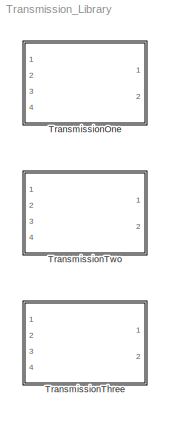
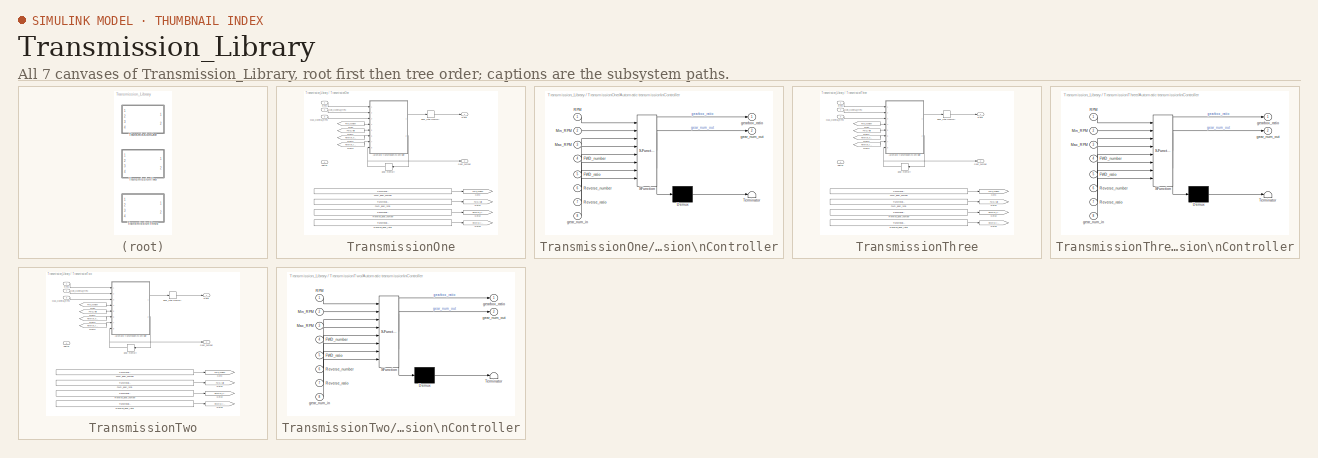
[diagram: thumbnail index - all 7 canvases of the model, root first then tree order]
MODEL Transmission_Library
KIND model
CONFIG PostLoadFcn = %%% BEGIN TransmissionOne CODE %%%\n% Import the data from Excel for a lookup table\ndata = xlsread('Transmission_Specification.xlsx', 'TransmissionOne');\nfor idx=1:length(data(:,1))\nif isnan(data(idx,1))\n  break\nend\nTransmission_TransmissionOne_FWD_gear_number_raw(idx) = data(idx,1);\nend\nfor idx=1:length(data(:,2))\nif isnan(data(idx,2))\n  break\nend\nTransmission_TransmissionOne_FWD_gear...<+3434ch>
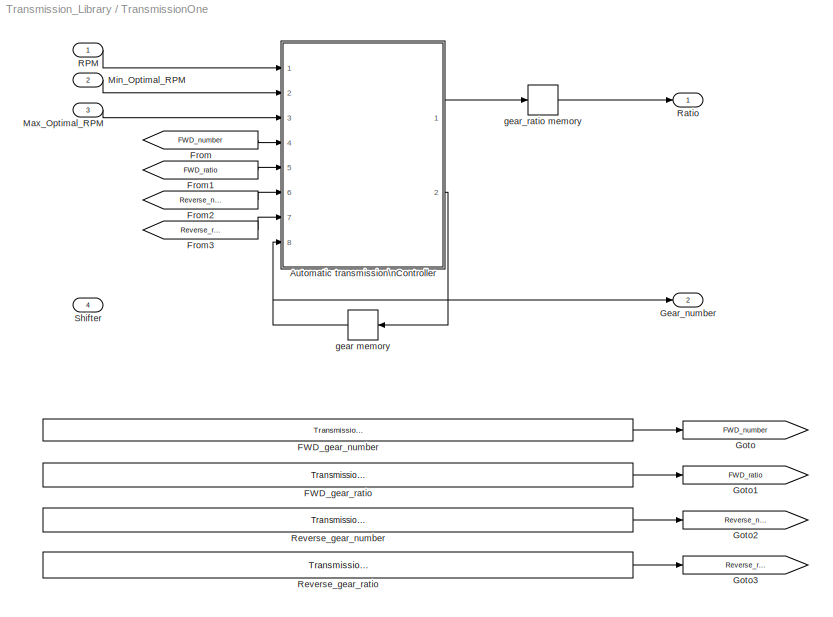
BLOCK [SubSystem] TransmissionOne
  FunctionWithSeparateData = off
  MaskHideContents = off
  MinAlgLoopOccurrences = off
  Opaque = off
  Ports = [4, 2]
  PropExecContextOutsideSubsystem = off
  RTWSystemCode = Auto
  RequestExecContextInheritance = off
  SID = 1
BLOCK [SubSystem] TransmissionOne/Automatic transmission\nController
  FunctionWithSeparateData = off
  MaskDescription = Embedded MATLAB block
  MaskDisplay = disp('fcn');
  MaskHideContents = off
  MaskIconFrame = on
  MaskIconOpaque = off
  MaskIconRotate = none
  MaskIconUnits = autoscale
  MaskPortRotate = default
  MaskSelfModifiable = on
  MaskType = Stateflow
  MinAlgLoopOccurrences = off
  Opaque = off
  PermitHierarchicalResolution = ExplicitOnly
  Ports = [8, 2]
  PropExecContextOutsideSubsystem = off
  RTWSystemCode = Auto
  RequestExecContextInheritance = off
  SID = 6
  TreatAsAtomicUnit = on
BLOCK [Demux] TransmissionOne/Automatic transmission\nController/ Demux 
  Outputs = 1
  Ports = [1, 1]
  SID = 6::15
BLOCK [S-Function] TransmissionOne/Automatic transmission\nController/ SFunction 
  EnableBusSupport = on
  FunctionName = sf_sfun
  PortCounts = [8 3]
  Ports = [8, 3]
  SID = 6::14
  Tag = Stateflow S-Function Transmission_Library 4
BLOCK [Terminator] TransmissionOne/Automatic transmission\nController/ Terminator 
  SID = 6::17
BLOCK [Inport] TransmissionOne/Automatic transmission\nController/FWD_number
  IconDisplay = Port number
  Port = 4
  SID = 6::24
BLOCK [Inport] TransmissionOne/Automatic transmission\nController/FWD_ratio
  IconDisplay = Port number
  Port = 5
  SID = 6::25
BLOCK [Inport] TransmissionOne/Automatic transmission\nController/Max_RPM
  IconDisplay = Port number
  Port = 3
  SID = 6::22
BLOCK [Inport] TransmissionOne/Automatic transmission\nController/Min_RPM
  IconDisplay = Port number
  Port = 2
  SID = 6::21
BLOCK [Inport] TransmissionOne/Automatic transmission\nController/RPM
  IconDisplay = Port number
  SID = 6::1
BLOCK [Inport] TransmissionOne/Automatic transmission\nController/Reverse_number
  IconDisplay = Port number
  Port = 6
  SID = 6::26
BLOCK [Inport] TransmissionOne/Automatic transmission\nController/Reverse_ratio
  IconDisplay = Port number
  Port = 7
  SID = 6::27
BLOCK [Inport] TransmissionOne/Automatic transmission\nController/gear_num_in
  IconDisplay = Port number
  Port = 8
  SID = 6::19
BLOCK [Outport] TransmissionOne/Automatic transmission\nController/gear_num_out
  IconDisplay = Port number
  Port = 2
  SID = 6::5
BLOCK [Outport] TransmissionOne/Automatic transmission\nController/gearbox_ratio
  IconDisplay = Port number
  SID = 6::20
BLOCK [Constant] TransmissionOne/FWD_gear_number
  SID = 7
  Value = Transmission_TransmissionOne_FWD_gear_number_raw
BLOCK [Constant] TransmissionOne/FWD_gear_ratio
  SID = 8
  Value = Transmission_TransmissionOne_FWD_gear_ratio_raw
BLOCK [From] TransmissionOne/From
  GotoTag = FWD_number
  SID = 9
BLOCK [From] TransmissionOne/From1
  GotoTag = FWD_ratio
  SID = 10
BLOCK [From] TransmissionOne/From2
  GotoTag = Reverse_number
  SID = 11
BLOCK [From] TransmissionOne/From3
  GotoTag = Reverse_ratio
  SID = 12
BLOCK [Outport] TransmissionOne/Gear_number
  IconDisplay = Port number
  Port = 2
  SID = 22
BLOCK [Goto] TransmissionOne/Goto
  GotoTag = FWD_number
  SID = 13
  TagVisibility = local
BLOCK [Goto] TransmissionOne/Goto1
  GotoTag = FWD_ratio
  SID = 14
  TagVisibility = local
BLOCK [Goto] TransmissionOne/Goto2
  GotoTag = Reverse_number
  SID = 15
  TagVisibility = local
BLOCK [Goto] TransmissionOne/Goto3
  GotoTag = Reverse_ratio
  SID = 16
  TagVisibility = local
BLOCK [Inport] TransmissionOne/Max_Optimal_RPM
  IconDisplay = Port number
  Port = 3
  SID = 4
BLOCK [Inport] TransmissionOne/Min_Optimal_RPM
  IconDisplay = Port number
  Port = 2
  SID = 3
BLOCK [Inport] TransmissionOne/RPM
  IconDisplay = Port number
  SID = 2
BLOCK [Outport] TransmissionOne/Ratio
  IconDisplay = Port number
  SID = 21
BLOCK [Constant] TransmissionOne/Reverse_gear_number
  SID = 17
  Value = Transmission_TransmissionOne_Reverse_gear_number_raw
BLOCK [Constant] TransmissionOne/Reverse_gear_ratio
  SID = 18
  Value = Transmission_TransmissionOne_Reverse_gear_ratio_raw
BLOCK [Inport] TransmissionOne/Shifter
  IconDisplay = Port number
  Port = 4
  SID = 5
BLOCK [Memory] TransmissionOne/gear memory
  SID = 19
  X0 = 1
BLOCK [Memory] TransmissionOne/gear_ratio memory
  SID = 20
  X0 = 1
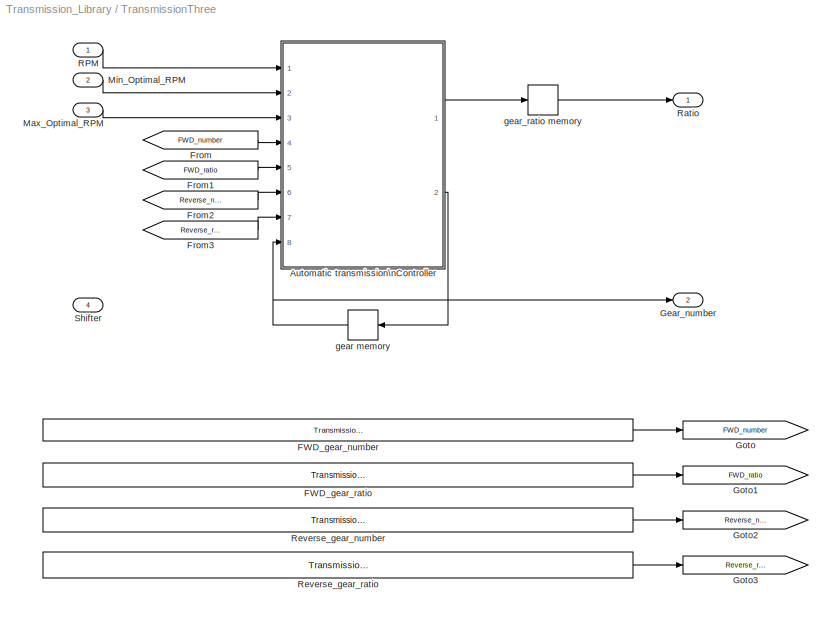
BLOCK [SubSystem] TransmissionThree
  FunctionWithSeparateData = off
  MaskHideContents = off
  MinAlgLoopOccurrences = off
  Opaque = off
  Ports = [4, 2]
  PropExecContextOutsideSubsystem = off
  RTWSystemCode = Auto
  RequestExecContextInheritance = off
  SID = 45
BLOCK [SubSystem] TransmissionThree/Automatic transmission\nController
  FunctionWithSeparateData = off
  MaskDescription = Embedded MATLAB block
  MaskDisplay = disp('fcn');
  MaskHideContents = off
  MaskIconFrame = on
  MaskIconOpaque = off
  MaskIconRotate = none
  MaskIconUnits = autoscale
  MaskPortRotate = default
  MaskSelfModifiable = on
  MaskType = Stateflow
  MinAlgLoopOccurrences = off
  Opaque = off
  PermitHierarchicalResolution = ExplicitOnly
  Ports = [8, 2]
  PropExecContextOutsideSubsystem = off
  RTWSystemCode = Auto
  RequestExecContextInheritance = off
  SID = 50
  TreatAsAtomicUnit = on
BLOCK [Demux] TransmissionThree/Automatic transmission\nController/ Demux 
  Outputs = 1
  Ports = [1, 1]
  SID = 50::15
BLOCK [S-Function] TransmissionThree/Automatic transmission\nController/ SFunction 
  EnableBusSupport = on
  FunctionName = sf_sfun
  PortCounts = [8 3]
  Ports = [8, 3]
  SID = 50::14
  Tag = Stateflow S-Function Transmission_Library 2
BLOCK [Terminator] TransmissionThree/Automatic transmission\nController/ Terminator 
  SID = 50::17
BLOCK [Inport] TransmissionThree/Automatic transmission\nController/FWD_number
  IconDisplay = Port number
  Port = 4
  SID = 50::24
BLOCK [Inport] TransmissionThree/Automatic transmission\nController/FWD_ratio
  IconDisplay = Port number
  Port = 5
  SID = 50::25
BLOCK [Inport] TransmissionThree/Automatic transmission\nController/Max_RPM
  IconDisplay = Port number
  Port = 3
  SID = 50::22
BLOCK [Inport] TransmissionThree/Automatic transmission\nController/Min_RPM
  IconDisplay = Port number
  Port = 2
  SID = 50::21
BLOCK [Inport] TransmissionThree/Automatic transmission\nController/RPM
  IconDisplay = Port number
  SID = 50::1
BLOCK [Inport] TransmissionThree/Automatic transmission\nController/Reverse_number
  IconDisplay = Port number
  Port = 6
  SID = 50::26
BLOCK [Inport] TransmissionThree/Automatic transmission\nController/Reverse_ratio
  IconDisplay = Port number
  Port = 7
  SID = 50::27
BLOCK [Inport] TransmissionThree/Automatic transmission\nController/gear_num_in
  IconDisplay = Port number
  Port = 8
  SID = 50::19
BLOCK [Outport] TransmissionThree/Automatic transmission\nController/gear_num_out
  IconDisplay = Port number
  Port = 2
  SID = 50::5
BLOCK [Outport] TransmissionThree/Automatic transmission\nController/gearbox_ratio
  IconDisplay = Port number
  SID = 50::20
BLOCK [Constant] TransmissionThree/FWD_gear_number
  SID = 51
  Value = Transmission_TransmissionThree_FWD_gear_number_raw
BLOCK [Constant] TransmissionThree/FWD_gear_ratio
  SID = 52
  Value = Transmission_TransmissionThree_FWD_gear_ratio_raw
BLOCK [From] TransmissionThree/From
  GotoTag = FWD_number
  SID = 53
BLOCK [From] TransmissionThree/From1
  GotoTag = FWD_ratio
  SID = 54
BLOCK [From] TransmissionThree/From2
  GotoTag = Reverse_number
  SID = 55
BLOCK [From] TransmissionThree/From3
  GotoTag = Reverse_ratio
  SID = 56
BLOCK [Outport] TransmissionThree/Gear_number
  IconDisplay = Port number
  Port = 2
  SID = 66
BLOCK [Goto] TransmissionThree/Goto
  GotoTag = FWD_number
  SID = 57
  TagVisibility = local
BLOCK [Goto] TransmissionThree/Goto1
  GotoTag = FWD_ratio
  SID = 58
  TagVisibility = local
BLOCK [Goto] TransmissionThree/Goto2
  GotoTag = Reverse_number
  SID = 59
  TagVisibility = local
BLOCK [Goto] TransmissionThree/Goto3
  GotoTag = Reverse_ratio
  SID = 60
  TagVisibility = local
BLOCK [Inport] TransmissionThree/Max_Optimal_RPM
  IconDisplay = Port number
  Port = 3
  SID = 48
BLOCK [Inport] TransmissionThree/Min_Optimal_RPM
  IconDisplay = Port number
  Port = 2
  SID = 47
BLOCK [Inport] TransmissionThree/RPM
  IconDisplay = Port number
  SID = 46
BLOCK [Outport] TransmissionThree/Ratio
  IconDisplay = Port number
  SID = 65
BLOCK [Constant] TransmissionThree/Reverse_gear_number
  SID = 61
  Value = Transmission_TransmissionThree_Reverse_gear_number_raw
BLOCK [Constant] TransmissionThree/Reverse_gear_ratio
  SID = 62
  Value = Transmission_TransmissionThree_Reverse_gear_ratio_raw
BLOCK [Inport] TransmissionThree/Shifter
  IconDisplay = Port number
  Port = 4
  SID = 49
BLOCK [Memory] TransmissionThree/gear memory
  SID = 63
  X0 = 1
BLOCK [Memory] TransmissionThree/gear_ratio memory
  SID = 64
  X0 = 1
BLOCK [SubSystem] TransmissionTwo
  FunctionWithSeparateData = off
  MaskHideContents = off
  MinAlgLoopOccurrences = off
  Opaque = off
  Ports = [4, 2]
  PropExecContextOutsideSubsystem = off
  RTWSystemCode = Auto
  RequestExecContextInheritance = off
  SID = 23
BLOCK [SubSystem] TransmissionTwo/Automatic transmission\nController
  FunctionWithSeparateData = off
  MaskDescription = Embedded MATLAB block
  MaskDisplay = disp('fcn');
  MaskHideContents = off
  MaskIconFrame = on
  MaskIconOpaque = off
  MaskIconRotate = none
  MaskIconUnits = autoscale
  MaskPortRotate = default
  MaskSelfModifiable = on
  MaskType = Stateflow
  MinAlgLoopOccurrences = off
  Opaque = off
  PermitHierarchicalResolution = ExplicitOnly
  Ports = [8, 2]
  PropExecContextOutsideSubsystem = off
  RTWSystemCode = Auto
  RequestExecContextInheritance = off
  SID = 28
  TreatAsAtomicUnit = on
BLOCK [Demux] TransmissionTwo/Automatic transmission\nController/ Demux 
  Outputs = 1
  Ports = [1, 1]
  SID = 28::15
BLOCK [S-Function] TransmissionTwo/Automatic transmission\nController/ SFunction 
  EnableBusSupport = on
  FunctionName = sf_sfun
  PortCounts = [8 3]
  Ports = [8, 3]
  SID = 28::14
  Tag = Stateflow S-Function Transmission_Library 1
BLOCK [Terminator] TransmissionTwo/Automatic transmission\nController/ Terminator 
  SID = 28::17
BLOCK [Inport] TransmissionTwo/Automatic transmission\nController/FWD_number
  IconDisplay = Port number
  Port = 4
  SID = 28::24
BLOCK [Inport] TransmissionTwo/Automatic transmission\nController/FWD_ratio
  IconDisplay = Port number
  Port = 5
  SID = 28::25
BLOCK [Inport] TransmissionTwo/Automatic transmission\nController/Max_RPM
  IconDisplay = Port number
  Port = 3
  SID = 28::22
BLOCK [Inport] TransmissionTwo/Automatic transmission\nController/Min_RPM
  IconDisplay = Port number
  Port = 2
  SID = 28::21
BLOCK [Inport] TransmissionTwo/Automatic transmission\nController/RPM
  IconDisplay = Port number
  SID = 28::1
BLOCK [Inport] TransmissionTwo/Automatic transmission\nController/Reverse_number
  IconDisplay = Port number
  Port = 6
  SID = 28::26
BLOCK [Inport] TransmissionTwo/Automatic transmission\nController/Reverse_ratio
  IconDisplay = Port number
  Port = 7
  SID = 28::27
BLOCK [Inport] TransmissionTwo/Automatic transmission\nController/gear_num_in
  IconDisplay = Port number
  Port = 8
  SID = 28::19
BLOCK [Outport] TransmissionTwo/Automatic transmission\nController/gear_num_out
  IconDisplay = Port number
  Port = 2
  SID = 28::5
BLOCK [Outport] TransmissionTwo/Automatic transmission\nController/gearbox_ratio
  IconDisplay = Port number
  SID = 28::20
BLOCK [Constant] TransmissionTwo/FWD_gear_number
  SID = 29
  Value = Transmission_TransmissionTwo_FWD_gear_number_raw
BLOCK [Constant] TransmissionTwo/FWD_gear_ratio
  SID = 30
  Value = Transmission_TransmissionTwo_FWD_gear_ratio_raw
BLOCK [From] TransmissionTwo/From
  GotoTag = FWD_number
  SID = 31
BLOCK [From] TransmissionTwo/From1
  GotoTag = FWD_ratio
  SID = 32
BLOCK [From] TransmissionTwo/From2
  GotoTag = Reverse_number
  SID = 33
BLOCK [From] TransmissionTwo/From3
  GotoTag = Reverse_ratio
  SID = 34
BLOCK [Outport] TransmissionTwo/Gear_number
  IconDisplay = Port number
  Port = 2
  SID = 44
BLOCK [Goto] TransmissionTwo/Goto
  GotoTag = FWD_number
  SID = 35
  TagVisibility = local
BLOCK [Goto] TransmissionTwo/Goto1
  GotoTag = FWD_ratio
  SID = 36
  TagVisibility = local
BLOCK [Goto] TransmissionTwo/Goto2
  GotoTag = Reverse_number
  SID = 37
  TagVisibility = local
BLOCK [Goto] TransmissionTwo/Goto3
  GotoTag = Reverse_ratio
  SID = 38
  TagVisibility = local
BLOCK [Inport] TransmissionTwo/Max_Optimal_RPM
  IconDisplay = Port number
  Port = 3
  SID = 26
BLOCK [Inport] TransmissionTwo/Min_Optimal_RPM
  IconDisplay = Port number
  Port = 2
  SID = 25
BLOCK [Inport] TransmissionTwo/RPM
  IconDisplay = Port number
  SID = 24
BLOCK [Outport] TransmissionTwo/Ratio
  IconDisplay = Port number
  SID = 43
BLOCK [Constant] TransmissionTwo/Reverse_gear_number
  SID = 39
  Value = Transmission_TransmissionTwo_Reverse_gear_number_raw
BLOCK [Constant] TransmissionTwo/Reverse_gear_ratio
  SID = 40
  Value = Transmission_TransmissionTwo_Reverse_gear_ratio_raw
BLOCK [Inport] TransmissionTwo/Shifter
  IconDisplay = Port number
  Port = 4
  SID = 27
BLOCK [Memory] TransmissionTwo/gear memory
  SID = 41
  X0 = 1
BLOCK [Memory] TransmissionTwo/gear_ratio memory
  SID = 42
  X0 = 1
LINE TransmissionOne/Automatic transmission\nController/ Demux :1 -> TransmissionOne/Automatic transmission\nController/ Terminator :1
LINE TransmissionOne/Automatic transmission\nController/ SFunction :1 -> TransmissionOne/Automatic transmission\nController/ Demux :1
LINE TransmissionOne/Automatic transmission\nController/ SFunction :2 -> TransmissionOne/Automatic transmission\nController/gearbox_ratio:1
LINE TransmissionOne/Automatic transmission\nController/ SFunction :3 -> TransmissionOne/Automatic transmission\nController/gear_num_out:1
LINE TransmissionOne/Automatic transmission\nController/FWD_number:1 -> TransmissionOne/Automatic transmission\nController/ SFunction :4
LINE TransmissionOne/Automatic transmission\nController/FWD_ratio:1 -> TransmissionOne/Automatic transmission\nController/ SFunction :5
LINE TransmissionOne/Automatic transmission\nController/Max_RPM:1 -> TransmissionOne/Automatic transmission\nController/ SFunction :3
LINE TransmissionOne/Automatic transmission\nController/Min_RPM:1 -> TransmissionOne/Automatic transmission\nController/ SFunction :2
LINE TransmissionOne/Automatic transmission\nController/RPM:1 -> TransmissionOne/Automatic transmission\nController/ SFunction :1
LINE TransmissionOne/Automatic transmission\nController/Reverse_number:1 -> TransmissionOne/Automatic transmission\nController/ SFunction :6
LINE TransmissionOne/Automatic transmission\nController/Reverse_ratio:1 -> TransmissionOne/Automatic transmission\nController/ SFunction :7
LINE TransmissionOne/Automatic transmission\nController/gear_num_in:1 -> TransmissionOne/Automatic transmission\nController/ SFunction :8
LINE TransmissionOne/Automatic transmission\nController:1 -> TransmissionOne/gear_ratio memory:1
LINE TransmissionOne/Automatic transmission\nController:2 -> TransmissionOne/gear memory:1
LINE TransmissionOne/FWD_gear_number:1 -> TransmissionOne/Goto:1
LINE TransmissionOne/FWD_gear_ratio:1 -> TransmissionOne/Goto1:1
LINE TransmissionOne/From1:1 -> TransmissionOne/Automatic transmission\nController:5
LINE TransmissionOne/From2:1 -> TransmissionOne/Automatic transmission\nController:6
LINE TransmissionOne/From3:1 -> TransmissionOne/Automatic transmission\nController:7
LINE TransmissionOne/From:1 -> TransmissionOne/Automatic transmission\nController:4
LINE TransmissionOne/Max_Optimal_RPM:1 -> TransmissionOne/Automatic transmission\nController:3
LINE TransmissionOne/Min_Optimal_RPM:1 -> TransmissionOne/Automatic transmission\nController:2
LINE TransmissionOne/RPM:1 -> TransmissionOne/Automatic transmission\nController:1
LINE TransmissionOne/Reverse_gear_number:1 -> TransmissionOne/Goto2:1
LINE TransmissionOne/Reverse_gear_ratio:1 -> TransmissionOne/Goto3:1
NET TransmissionOne/gear memory:1 -> TransmissionOne/Automatic transmission\nController:8, TransmissionOne/Gear_number:1
LINE TransmissionOne/gear_ratio memory:1 -> TransmissionOne/Ratio:1
LINE TransmissionThree/Automatic transmission\nController/ Demux :1 -> TransmissionThree/Automatic transmission\nController/ Terminator :1
LINE TransmissionThree/Automatic transmission\nController/ SFunction :1 -> TransmissionThree/Automatic transmission\nController/ Demux :1
LINE TransmissionThree/Automatic transmission\nController/ SFunction :2 -> TransmissionThree/Automatic transmission\nController/gearbox_ratio:1
LINE TransmissionThree/Automatic transmission\nController/ SFunction :3 -> TransmissionThree/Automatic transmission\nController/gear_num_out:1
LINE TransmissionThree/Automatic transmission\nController/FWD_number:1 -> TransmissionThree/Automatic transmission\nController/ SFunction :4
LINE TransmissionThree/Automatic transmission\nController/FWD_ratio:1 -> TransmissionThree/Automatic transmission\nController/ SFunction :5
LINE TransmissionThree/Automatic transmission\nController/Max_RPM:1 -> TransmissionThree/Automatic transmission\nController/ SFunction :3
LINE TransmissionThree/Automatic transmission\nController/Min_RPM:1 -> TransmissionThree/Automatic transmission\nController/ SFunction :2
LINE TransmissionThree/Automatic transmission\nController/RPM:1 -> TransmissionThree/Automatic transmission\nController/ SFunction :1
LINE TransmissionThree/Automatic transmission\nController/Reverse_number:1 -> TransmissionThree/Automatic transmission\nController/ SFunction :6
LINE TransmissionThree/Automatic transmission\nController/Reverse_ratio:1 -> TransmissionThree/Automatic transmission\nController/ SFunction :7
LINE TransmissionThree/Automatic transmission\nController/gear_num_in:1 -> TransmissionThree/Automatic transmission\nController/ SFunction :8
LINE TransmissionThree/Automatic transmission\nController:1 -> TransmissionThree/gear_ratio memory:1
LINE TransmissionThree/Automatic transmission\nController:2 -> TransmissionThree/gear memory:1
LINE TransmissionThree/FWD_gear_number:1 -> TransmissionThree/Goto:1
LINE TransmissionThree/FWD_gear_ratio:1 -> TransmissionThree/Goto1:1
LINE TransmissionThree/From1:1 -> TransmissionThree/Automatic transmission\nController:5
LINE TransmissionThree/From2:1 -> TransmissionThree/Automatic transmission\nController:6
LINE TransmissionThree/From3:1 -> TransmissionThree/Automatic transmission\nController:7
LINE TransmissionThree/From:1 -> TransmissionThree/Automatic transmission\nController:4
LINE TransmissionThree/Max_Optimal_RPM:1 -> TransmissionThree/Automatic transmission\nController:3
LINE TransmissionThree/Min_Optimal_RPM:1 -> TransmissionThree/Automatic transmission\nController:2
LINE TransmissionThree/RPM:1 -> TransmissionThree/Automatic transmission\nController:1
LINE TransmissionThree/Reverse_gear_number:1 -> TransmissionThree/Goto2:1
LINE TransmissionThree/Reverse_gear_ratio:1 -> TransmissionThree/Goto3:1
NET TransmissionThree/gear memory:1 -> TransmissionThree/Automatic transmission\nController:8, TransmissionThree/Gear_number:1
LINE TransmissionThree/gear_ratio memory:1 -> TransmissionThree/Ratio:1
LINE TransmissionTwo/Automatic transmission\nController/ Demux :1 -> TransmissionTwo/Automatic transmission\nController/ Terminator :1
LINE TransmissionTwo/Automatic transmission\nController/ SFunction :1 -> TransmissionTwo/Automatic transmission\nController/ Demux :1
LINE TransmissionTwo/Automatic transmission\nController/ SFunction :2 -> TransmissionTwo/Automatic transmission\nController/gearbox_ratio:1
LINE TransmissionTwo/Automatic transmission\nController/ SFunction :3 -> TransmissionTwo/Automatic transmission\nController/gear_num_out:1
LINE TransmissionTwo/Automatic transmission\nController/FWD_number:1 -> TransmissionTwo/Automatic transmission\nController/ SFunction :4
LINE TransmissionTwo/Automatic transmission\nController/FWD_ratio:1 -> TransmissionTwo/Automatic transmission\nController/ SFunction :5
LINE TransmissionTwo/Automatic transmission\nController/Max_RPM:1 -> TransmissionTwo/Automatic transmission\nController/ SFunction :3
LINE TransmissionTwo/Automatic transmission\nController/Min_RPM:1 -> TransmissionTwo/Automatic transmission\nController/ SFunction :2
LINE TransmissionTwo/Automatic transmission\nController/RPM:1 -> TransmissionTwo/Automatic transmission\nController/ SFunction :1
LINE TransmissionTwo/Automatic transmission\nController/Reverse_number:1 -> TransmissionTwo/Automatic transmission\nController/ SFunction :6
LINE TransmissionTwo/Automatic transmission\nController/Reverse_ratio:1 -> TransmissionTwo/Automatic transmission\nController/ SFunction :7
LINE TransmissionTwo/Automatic transmission\nController/gear_num_in:1 -> TransmissionTwo/Automatic transmission\nController/ SFunction :8
LINE TransmissionTwo/Automatic transmission\nController:1 -> TransmissionTwo/gear_ratio memory:1
LINE TransmissionTwo/Automatic transmission\nController:2 -> TransmissionTwo/gear memory:1
LINE TransmissionTwo/FWD_gear_number:1 -> TransmissionTwo/Goto:1
LINE TransmissionTwo/FWD_gear_ratio:1 -> TransmissionTwo/Goto1:1
LINE TransmissionTwo/From1:1 -> TransmissionTwo/Automatic transmission\nController:5
LINE TransmissionTwo/From2:1 -> TransmissionTwo/Automatic transmission\nController:6
LINE TransmissionTwo/From3:1 -> TransmissionTwo/Automatic transmission\nController:7
LINE TransmissionTwo/From:1 -> TransmissionTwo/Automatic transmission\nController:4
LINE TransmissionTwo/Max_Optimal_RPM:1 -> TransmissionTwo/Automatic transmission\nController:3
LINE TransmissionTwo/Min_Optimal_RPM:1 -> TransmissionTwo/Automatic transmission\nController:2
LINE TransmissionTwo/RPM:1 -> TransmissionTwo/Automatic transmission\nController:1
LINE TransmissionTwo/Reverse_gear_number:1 -> TransmissionTwo/Goto2:1
LINE TransmissionTwo/Reverse_gear_ratio:1 -> TransmissionTwo/Goto3:1
NET TransmissionTwo/gear memory:1 -> TransmissionTwo/Automatic transmission\nController:8, TransmissionTwo/Gear_number:1
LINE TransmissionTwo/gear_ratio memory:1 -> TransmissionTwo/Ratio:1
note: NET lines group one-source signal fan-out (src -> all destinations, sorted); 1:1 wires keep LINE
CHART TransmissionTwo/Automatic transmission\nController states=1 transitions=1
  STATE_LABEL 'eML_blk_kernel()'
CHART TransmissionThree/Automatic transmission\nController states=1 transitions=1
  STATE_LABEL 'eML_blk_kernel()'
CHART TransmissionOne/Automatic transmission\nController states=1 transitions=1
  STATE_LABEL 'eML_blk_kernel()'
